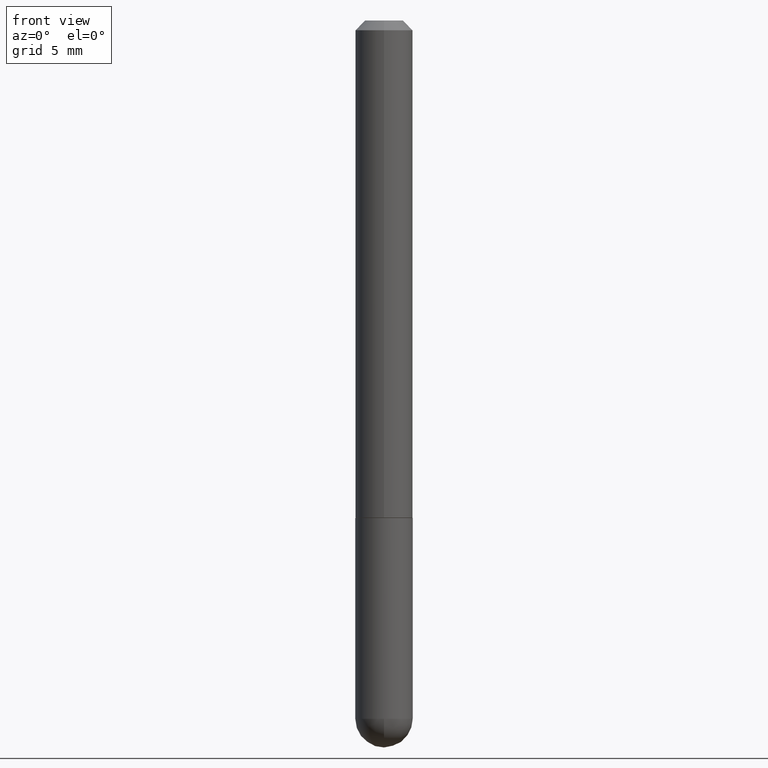
[diagram: clean part render]
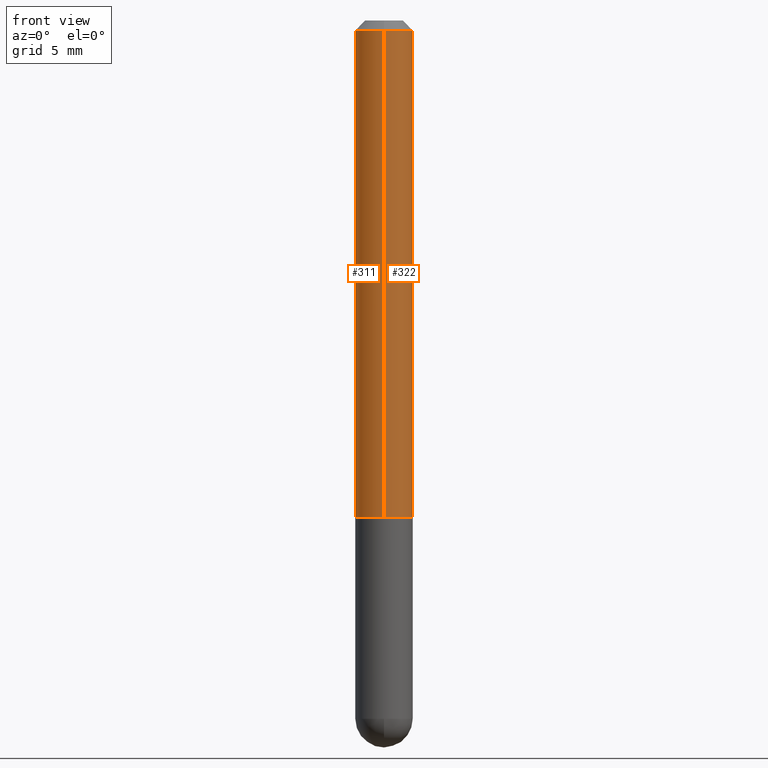
[diagram: same view with one multi-face feature highlighted, each face labeled with its STEP entity id]
A machine part, front view. The highlighted faces form ONE feature: a constant-radius fillet chain: 2 tangent blend faces with common blend radius 1.4999 mm. The faces share edges in the B-rep.
Their STEP definitions:
[1] entity #311 (Cylinder):
#3 = LINE ( 'NONE', #385, #8 ) ;
#7 = CARTESIAN_POINT ( 'NONE',  ( 2.521263576162892590E-29, -3.541692087412614513E-15, -1.022699999999999720 ) ) ;
#8 = VECTOR ( 'NONE', #266, 39.37007874015748143 ) ;
#14 = DIRECTION ( 'NONE',  ( -2.465301238058955103E-29, 3.463080167607916397E-15, 1.000000000000000000 ) ) ;
#38 = DIRECTION ( 'NONE',  ( -6.982962677686265922E-15, -1.000000000000000000, 3.469747663417776213E-15 ) ) ;
#42 = ORIENTED_EDGE ( 'NONE', *, *, #260, .F. ) ;
#45 = CARTESIAN_POINT ( 'NONE',  ( 0.000000000000000000, 0.000000000000000000, 0.000000000000000000 ) ) ;
#63 = AXIS2_PLACEMENT_3D ( 'NONE', #7, #135, #391 ) ;
#78 = CARTESIAN_POINT ( 'NONE',  ( -4.051124067684085231E-16, -0.05905000000000008159, -0.01999999999999986511 ) ) ;
#80 = CARTESIAN_POINT ( 'NONE',  ( -4.123439461173744764E-16, -0.05905000000000006771, 2.044948838972476712E-16 ) ) ;
#90 = ORIENTED_EDGE ( 'NONE', *, *, #229, .F. ) ;
#119 = EDGE_LOOP ( 'NONE', ( #42, #219, #244, #90 ) ) ;
#130 = DIRECTION ( 'NONE',  ( -6.982962677686265922E-15, -1.000000000000000000, 3.463080167607916003E-15 ) ) ;
#132 = AXIS2_PLACEMENT_3D ( 'NONE', #45, #295, #130 ) ;
#135 = DIRECTION ( 'NONE',  ( -2.465301238058955103E-29, 3.463080167607916003E-15, 1.000000000000000000 ) ) ;
#177 = VERTEX_POINT ( 'NONE', #255 ) ;
#178 = LINE ( 'NONE', #80, #347 ) ;
#195 = AXIS2_PLACEMENT_3D ( 'NONE', #329, #321, #38 ) ;
#208 = FACE_OUTER_BOUND ( 'NONE', #119, .T. ) ;
#217 = VERTEX_POINT ( 'NONE', #235 ) ;
#219 = ORIENTED_EDGE ( 'NONE', *, *, #364, .T. ) ;
#229 = EDGE_CURVE ( 'NONE', #217, #271, #247, .T. ) ;
#234 = CIRCLE ( 'NONE', #63, 0.05905000000000013016 ) ;
#235 = CARTESIAN_POINT ( 'NONE',  ( 4.123439461173745750E-16, 0.05904999999999994975, -0.02000000000000027450 ) ) ;
#242 = VERTEX_POINT ( 'NONE', #270 ) ;
#244 = ORIENTED_EDGE ( 'NONE', *, *, #298, .T. ) ;
#247 = CIRCLE ( 'NONE', #195, 0.05905000000000001914 ) ;
#255 = CARTESIAN_POINT ( 'NONE',  ( 4.195754854663527557E-16, 0.05904999999999659133, -1.022699999999999942 ) ) ;
#260 = EDGE_CURVE ( 'NONE', #177, #217, #3, .T. ) ;
#266 = DIRECTION ( 'NONE',  ( -2.465301238058955103E-29, 3.463080167607916397E-15, 1.000000000000000000 ) ) ;
#270 = CARTESIAN_POINT ( 'NONE',  ( -4.123439461173496766E-16, -0.05905000000000366900, -1.022699999999999498 ) ) ;
#271 = VERTEX_POINT ( 'NONE', #78 ) ;
#295 = DIRECTION ( 'NONE',  ( -2.465301238058955103E-29, 3.463080167607916003E-15, 1.000000000000000000 ) ) ;
#298 = EDGE_CURVE ( 'NONE', #242, #271, #178, .T. ) ;
#311 = ADVANCED_FACE ( 'NONE', ( #208 ), #354, .T. ) ;
#321 = DIRECTION ( 'NONE',  ( -2.465301238058955103E-29, 3.463080167607916003E-15, 1.000000000000000000 ) ) ;
#329 = CARTESIAN_POINT ( 'NONE',  ( 4.930602476117926847E-31, -6.926160335215854735E-17, -0.02000000000000006981 ) ) ;
#347 = VECTOR ( 'NONE', #14, 39.37007874015748143 ) ;
#354 = CYLINDRICAL_SURFACE ( 'NONE', #132, 0.05905000000000006771 ) ;
#364 = EDGE_CURVE ( 'NONE', #177, #242, #234, .T. ) ;
#385 = CARTESIAN_POINT ( 'NONE',  ( 4.195754854663395916E-16, 0.05905000000000006771, -2.044948838972476712E-16 ) ) ;
#391 = DIRECTION ( 'NONE',  ( -6.982962677686265133E-15, -1.000000000000000000, 2.313165108945179540E-15 ) ) ;
[2] entity #322 (Cylinder):
#1 = CARTESIAN_POINT ( 'NONE',  ( 4.930602476117926847E-31, -6.926160335215854735E-17, -0.02000000000000006981 ) ) ;
#3 = LINE ( 'NONE', #385, #8 ) ;
#8 = VECTOR ( 'NONE', #266, 39.37007874015748143 ) ;
#11 = EDGE_CURVE ( 'NONE', #271, #217, #134, .T. ) ;
#14 = DIRECTION ( 'NONE',  ( -2.465301238058955103E-29, 3.463080167607916397E-15, 1.000000000000000000 ) ) ;
#29 = DIRECTION ( 'NONE',  ( -2.465301238058955103E-29, 3.463080167607916003E-15, 1.000000000000000000 ) ) ;
#36 = EDGE_CURVE ( 'NONE', #242, #177, #375, .T. ) ;
#46 = AXIS2_PLACEMENT_3D ( 'NONE', #342, #29, #189 ) ;
#56 = ORIENTED_EDGE ( 'NONE', *, *, #260, .T. ) ;
#78 = CARTESIAN_POINT ( 'NONE',  ( -4.051124067684085231E-16, -0.05905000000000008159, -0.01999999999999986511 ) ) ;
#80 = CARTESIAN_POINT ( 'NONE',  ( -4.123439461173744764E-16, -0.05905000000000006771, 2.044948838972476712E-16 ) ) ;
#103 = EDGE_LOOP ( 'NONE', ( #137, #56, #277, #366 ) ) ;
#110 = CARTESIAN_POINT ( 'NONE',  ( 0.000000000000000000, 0.000000000000000000, 0.000000000000000000 ) ) ;
#134 = CIRCLE ( 'NONE', #202, 0.05905000000000001914 ) ;
#137 = ORIENTED_EDGE ( 'NONE', *, *, #36, .T. ) ;
#157 = DIRECTION ( 'NONE',  ( -6.982962677686265922E-15, -1.000000000000000000, 3.469747663417776213E-15 ) ) ;
#174 = DIRECTION ( 'NONE',  ( -2.465301238058955103E-29, 3.463080167607916003E-15, 1.000000000000000000 ) ) ;
#177 = VERTEX_POINT ( 'NONE', #255 ) ;
#178 = LINE ( 'NONE', #80, #347 ) ;
#189 = DIRECTION ( 'NONE',  ( -6.982962677686265133E-15, -1.000000000000000000, 2.313165108945179540E-15 ) ) ;
#202 = AXIS2_PLACEMENT_3D ( 'NONE', #1, #283, #157 ) ;
#205 = DIRECTION ( 'NONE',  ( -6.982962677686265922E-15, -1.000000000000000000, 3.463080167607916003E-15 ) ) ;
#217 = VERTEX_POINT ( 'NONE', #235 ) ;
#235 = CARTESIAN_POINT ( 'NONE',  ( 4.123439461173745750E-16, 0.05904999999999994975, -0.02000000000000027450 ) ) ;
#242 = VERTEX_POINT ( 'NONE', #270 ) ;
#255 = CARTESIAN_POINT ( 'NONE',  ( 4.195754854663527557E-16, 0.05904999999999659133, -1.022699999999999942 ) ) ;
#260 = EDGE_CURVE ( 'NONE', #177, #217, #3, .T. ) ;
#266 = DIRECTION ( 'NONE',  ( -2.465301238058955103E-29, 3.463080167607916397E-15, 1.000000000000000000 ) ) ;
#270 = CARTESIAN_POINT ( 'NONE',  ( -4.123439461173496766E-16, -0.05905000000000366900, -1.022699999999999498 ) ) ;
#271 = VERTEX_POINT ( 'NONE', #78 ) ;
#277 = ORIENTED_EDGE ( 'NONE', *, *, #11, .F. ) ;
#283 = DIRECTION ( 'NONE',  ( -2.465301238058955103E-29, 3.463080167607916003E-15, 1.000000000000000000 ) ) ;
#292 = FACE_OUTER_BOUND ( 'NONE', #103, .T. ) ;
#298 = EDGE_CURVE ( 'NONE', #242, #271, #178, .T. ) ;
#322 = ADVANCED_FACE ( 'NONE', ( #292 ), #327, .T. ) ;
#327 = CYLINDRICAL_SURFACE ( 'NONE', #409, 0.05905000000000006771 ) ;
#342 = CARTESIAN_POINT ( 'NONE',  ( 2.521263576162892590E-29, -3.541692087412614513E-15, -1.022699999999999720 ) ) ;
#347 = VECTOR ( 'NONE', #14, 39.37007874015748143 ) ;
#366 = ORIENTED_EDGE ( 'NONE', *, *, #298, .F. ) ;
#375 = CIRCLE ( 'NONE', #46, 0.05905000000000013016 ) ;
#385 = CARTESIAN_POINT ( 'NONE',  ( 4.195754854663395916E-16, 0.05905000000000006771, -2.044948838972476712E-16 ) ) ;
#409 = AXIS2_PLACEMENT_3D ( 'NONE', #110, #174, #205 ) ;